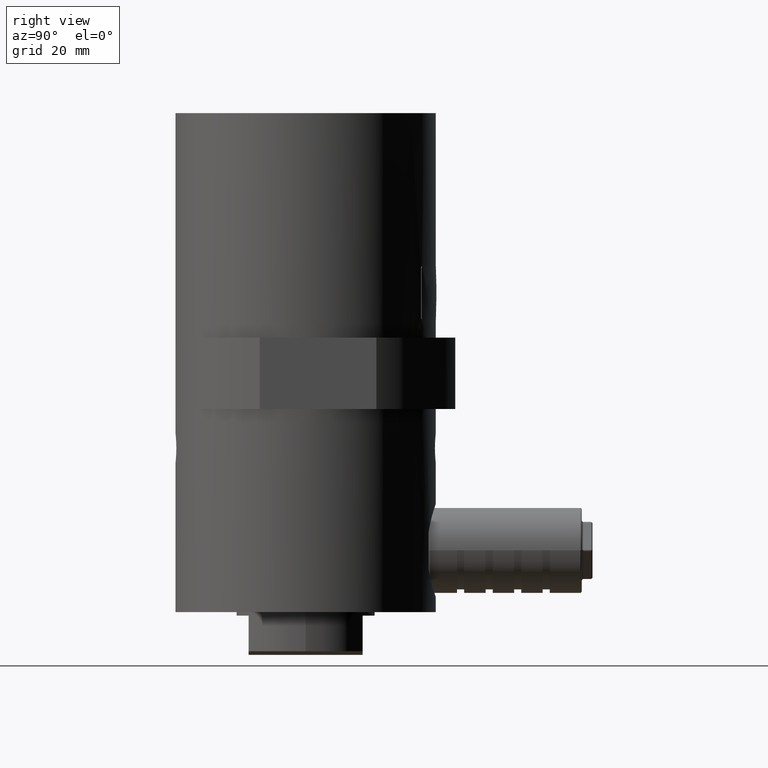
[diagram: clean part render]
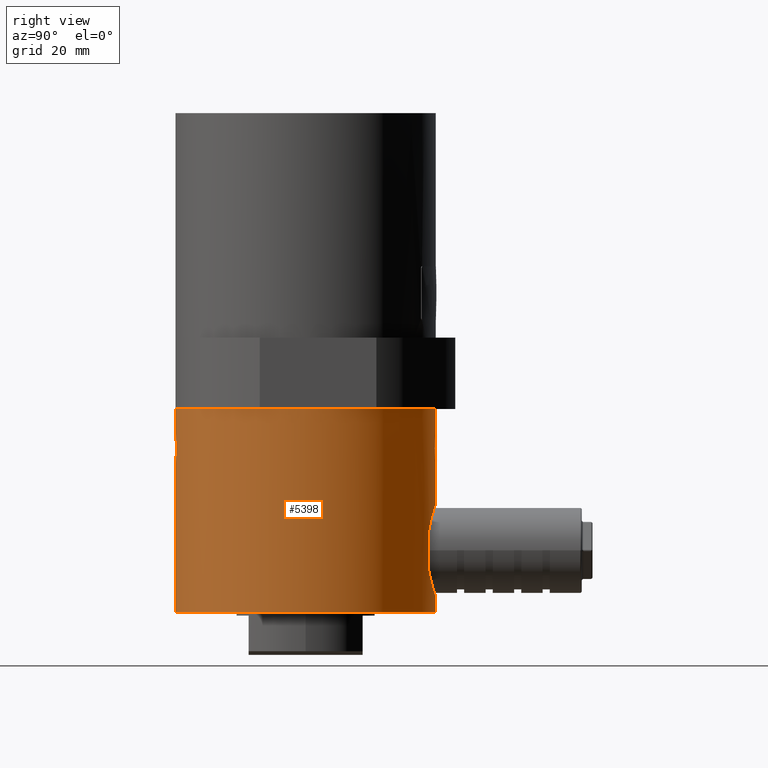
[diagram: same view with one face highlighted and labeled with its STEP entity id]
A machine part, right view. The second image highlights one B-rep face of the part: STEP entity #5398.
In plain terms, the highlighted cylindrical surface (partial cylindrical patch) has radius 36.5 mm, axis along (0, -0, 1).
Its self-contained STEP definition (entity closure, byte-faithful):
#20 = CARTESIAN_POINT ( 'NONE',  ( 9.778555430068150800, 35.16637172208777400, -131.2719685003688700 ) ) ;
#24 = CARTESIAN_POINT ( 'NONE',  ( 1.771616815519403900, -36.45777636000617900, -90.40426581798509200 ) ) ;
#41 = CARTESIAN_POINT ( 'NONE',  ( 11.94528777384622000, 34.49000000000000200, -127.8293371891501800 ) ) ;
#114 = VERTEX_POINT ( 'NONE', #2046 ) ;
#161 = CARTESIAN_POINT ( 'NONE',  ( 2.645151112116227700, -36.40449571297064300, -97.01182245972367500 ) ) ;
#179 = CARTESIAN_POINT ( 'NONE',  ( 0.2643157487566177300, -36.50000000000000000, -98.00000000000001400 ) ) ;
#183 = VERTEX_POINT ( 'NONE', #264 ) ;
#191 = CARTESIAN_POINT ( 'NONE',  ( 4.000000000000000000, 36.28015986734347100, -94.00000000000000000 ) ) ;
#217 = CARTESIAN_POINT ( 'NONE',  ( 1.775047907601103200, -36.45760690455501400, -97.59401922834754800 ) ) ;
#264 = CARTESIAN_POINT ( 'NONE',  ( 4.469960872424801800E-015, 36.50000000000000700, -90.00000000000000000 ) ) ;
#308 = CARTESIAN_POINT ( 'NONE',  ( 1.267367008762928100, 36.48347685902305000, -135.6538297932009700 ) ) ;
#337 = CARTESIAN_POINT ( 'NONE',  ( -6.659651541786251600E-030, 1.714448895351339800E-014, -140.0000000000000000 ) ) ;
#346 = CARTESIAN_POINT ( 'NONE',  ( 1.035464438332230900, 36.48620525582615000, -97.87243148480682500 ) ) ;
#354 = DIRECTION ( 'NONE',  ( 4.756893958418750000E-032, -1.224606353822383900E-016, 1.000000000000000000 ) ) ;
#444 = CARTESIAN_POINT ( 'NONE',  ( 9.127438694983826700, 35.34107086984025900, -113.4377464997834000 ) ) ;
#453 = CARTESIAN_POINT ( 'NONE',  ( 3.012049211853414600, -36.37597842538082200, -91.35508037010399100 ) ) ;
#469 = CARTESIAN_POINT ( 'NONE',  ( 0.6347074950859447100, 36.50000000000000000, -109.6999999999999900 ) ) ;
#475 = DIRECTION ( 'NONE',  ( 0.0000000000000000000, 1.000000000000000000, 0.0000000000000000000 ) ) ;
#485 = ORIENTED_EDGE ( 'NONE', *, *, #5120, .T. ) ;
#519 = CARTESIAN_POINT ( 'NONE',  ( 3.471332641464291800, -36.33484694282923000, -91.99546552348670000 ) ) ;
#538 = CARTESIAN_POINT ( 'NONE',  ( 3.594260535429708400, -36.32274068013733600, -92.22516122896956900 ) ) ;
#553 = DIRECTION ( 'NONE',  ( -4.756893958418750000E-032, 1.224606353822383900E-016, -1.000000000000000000 ) ) ;
#633 = CARTESIAN_POINT ( 'NONE',  ( 11.94528777384622000, 34.49000000000000200, -127.8293371891501800 ) ) ;
#696 = ORIENTED_EDGE ( 'NONE', *, *, #5666, .T. ) ;
#757 = CARTESIAN_POINT ( 'NONE',  ( 0.6342915227671740400, 36.50000000000001400, -135.7000000000000200 ) ) ;
#820 = EDGE_CURVE ( 'NONE', #183, #3149, #6056, .T. ) ;
#832 = CARTESIAN_POINT ( 'NONE',  ( 3.870720647310023300, 36.29421747909638900, -95.04258738552832100 ) ) ;
#863 = DIRECTION ( 'NONE',  ( -4.756893958418750000E-032, 1.224606353822383900E-016, -1.000000000000000000 ) ) ;
#883 = CARTESIAN_POINT ( 'NONE',  ( -3.948221985487564300E-030, 1.016423273672579900E-014, -83.00000000000000000 ) ) ;
#886 = LINE ( 'NONE', #3372, #6092 ) ;
#889 = CARTESIAN_POINT ( 'NONE',  ( 4.370137946967112400, 36.24252201808216300, -110.4403146722136900 ) ) ;
#892 = AXIS2_PLACEMENT_3D ( 'NONE', #1270, #1294, #3339 ) ;
#957 = CARTESIAN_POINT ( 'NONE',  ( 6.653916620651197700, 35.88946870403552200, -111.5274572706509700 ) ) ;
#971 = EDGE_CURVE ( 'NONE', #5291, #183, #3874, .T. ) ;
#1013 = EDGE_LOOP ( 'NONE', ( #2701, #1580, #1985, #2295, #2092, #4784, #1121, #5720, #2073, #696, #3067, #4777, #485, #4979, #4762 ) ) ;
#1062 = VECTOR ( 'NONE', #553, 1000.000000000000000 ) ;
#1121 = ORIENTED_EDGE ( 'NONE', *, *, #4513, .T. ) ;
#1162 = CARTESIAN_POINT ( 'NONE',  ( 3.472133380276375200, -36.33476961676002000, -96.00312249883188500 ) ) ;
#1255 = CARTESIAN_POINT ( 'NONE',  ( 3.872218025569685600, 36.29405665241856100, -92.96367664966167900 ) ) ;
#1270 = CARTESIAN_POINT ( 'NONE',  ( -3.948221985487564300E-030, 1.016423273672579900E-014, -83.00000000000000000 ) ) ;
#1294 = DIRECTION ( 'NONE',  ( -4.756893958418750000E-032, 1.224606353822383900E-016, -1.000000000000000000 ) ) ;
#1302 = CARTESIAN_POINT ( 'NONE',  ( 4.000000000000000000, 36.28015986734350700, -93.73543523187927900 ) ) ;
#1318 = CARTESIAN_POINT ( 'NONE',  ( 3.155087671428643800, 36.36472317645144900, -135.3153627309725100 ) ) ;
#1353 = CARTESIAN_POINT ( 'NONE',  ( 4.000000000000000000, 36.28015986734347100, -94.00000000000000000 ) ) ;
#1364 = VECTOR ( 'NONE', #5170, 1000.000000000000000 ) ;
#1372 = CARTESIAN_POINT ( 'NONE',  ( 4.469960872424801800E-015, 36.50000000000000700, -90.00000000000000000 ) ) ;
#1374 = CARTESIAN_POINT ( 'NONE',  ( 0.2642569970219800200, 36.50000000000002100, -98.00000000000001400 ) ) ;
#1387 = CARTESIAN_POINT ( 'NONE',  ( 7.707908462411435100, 35.68085585538752700, -133.1872786232761400 ) ) ;
#1428 = CARTESIAN_POINT ( 'NONE',  ( 9.777757007282566800, 35.16659397958473900, -114.1271196174098600 ) ) ;
#1561 = FACE_OUTER_BOUND ( 'NONE', #1013, .T. ) ;
#1580 = ORIENTED_EDGE ( 'NONE', *, *, #2494, .T. ) ;
#1676 = CARTESIAN_POINT ( 'NONE',  ( 3.013539097279224000, -36.37585345570323600, -96.64319523380233100 ) ) ;
#1678 = EDGE_CURVE ( 'NONE', #4942, #5465, #4636, .T. ) ;
#1699 = CARTESIAN_POINT ( 'NONE',  ( 4.000000000000001800, -36.28015986734346400, -94.26425643815770200 ) ) ;
#1709 = CARTESIAN_POINT ( 'NONE',  ( 4.469960816887831300E-015, 36.50000000000001400, -140.0000000000000000 ) ) ;
#1778 = CARTESIAN_POINT ( 'NONE',  ( 2.004069476160280000, 36.44559949802812300, -90.52826883490581600 ) ) ;
#1790 = CARTESIAN_POINT ( 'NONE',  ( -6.659651541786251600E-030, 1.714448895351339800E-014, -140.0000000000000000 ) ) ;
#1857 = VERTEX_POINT ( 'NONE', #2308 ) ;
#1907 = CARTESIAN_POINT ( 'NONE',  ( 11.44183048544275400, 34.66436770634443600, -116.3982029061781400 ) ) ;
#1932 = CARTESIAN_POINT ( 'NONE',  ( 5.818119153085315400, 36.03447675783002800, -111.0703080205299800 ) ) ;
#1946 = CARTESIAN_POINT ( 'NONE',  ( 0.2611788878705434400, 36.50000000000000700, -89.99999999999997200 ) ) ;
#1977 = CARTESIAN_POINT ( 'NONE',  ( 2.543323374543458900, 36.41684507756042400, -109.9350327000208300 ) ) ;
#1985 = ORIENTED_EDGE ( 'NONE', *, *, #5681, .T. ) ;
#1987 = CARTESIAN_POINT ( 'NONE',  ( 0.5209754329271869500, -36.49719594881125300, -90.02534117997592500 ) ) ;
#2046 = CARTESIAN_POINT ( 'NONE',  ( 11.94528777384622000, 34.49000000000000200, -117.5706628108498000 ) ) ;
#2070 = CARTESIAN_POINT ( 'NONE',  ( 11.44210201840087000, 34.66427366345303100, -129.0011647432461100 ) ) ;
#2073 = ORIENTED_EDGE ( 'NONE', *, *, #820, .T. ) ;
#2092 = ORIENTED_EDGE ( 'NONE', *, *, #4303, .T. ) ;
#2195 = CARTESIAN_POINT ( 'NONE',  ( 3.795532454401846900, -36.30226029463583600, -95.28941602425527400 ) ) ;
#2207 = VERTEX_POINT ( 'NONE', #633 ) ;
#2288 = CARTESIAN_POINT ( 'NONE',  ( 4.959541145783456200, 36.16611314729268400, -134.7333853982269700 ) ) ;
#2295 = ORIENTED_EDGE ( 'NONE', *, *, #2794, .F. ) ;
#2307 = CARTESIAN_POINT ( 'NONE',  ( 6.103393645098708300, 35.99074012259909900, -134.1955642981086800 ) ) ;
#2308 = CARTESIAN_POINT ( 'NONE',  ( 1.778981929055194700E-015, -36.50000000000000000, -98.00000000000000000 ) ) ;
#2317 = CARTESIAN_POINT ( 'NONE',  ( 3.011846425882153300, 36.37599512502883000, -91.35485361387102900 ) ) ;
#2319 = CARTESIAN_POINT ( 'NONE',  ( 3.469774696204721100, 36.33499998409977400, -96.00741614653364300 ) ) ;
#2329 = VERTEX_POINT ( 'NONE', #3404 ) ;
#2344 = CARTESIAN_POINT ( 'NONE',  ( 0.5242668822873894900, 36.49713009004219100, -97.97404786630845300 ) ) ;
#2387 = DIRECTION ( 'NONE',  ( -4.756893958418750000E-032, 1.224606353822383900E-016, -1.000000000000000000 ) ) ;
#2391 = CARTESIAN_POINT ( 'NONE',  ( 4.469960816887833700E-015, 36.50000000000001400, -140.0000000000000000 ) ) ;
#2418 = CARTESIAN_POINT ( 'NONE',  ( 4.000000000000000900, 36.28015986734350700, -94.26431602181199300 ) ) ;
#2432 = EDGE_CURVE ( 'NONE', #4324, #3618, #3058, .T. ) ;
#2451 = CARTESIAN_POINT ( 'NONE',  ( -5.303936763636907300E-030, -36.49999999999998600, -140.0000000000000000 ) ) ;
#2470 = CARTESIAN_POINT ( 'NONE',  ( 6.101933842327811800, 35.98742799418123200, -111.2166764036903100 ) ) ;
#2474 = AXIS2_PLACEMENT_3D ( 'NONE', #1790, #6374, #2822 ) ;
#2482 = CARTESIAN_POINT ( 'NONE',  ( 4.000000000000000000, -36.28015986734363500, -94.00000000000000000 ) ) ;
#2494 = EDGE_CURVE ( 'NONE', #4942, #2329, #6501, .T. ) ;
#2545 = CARTESIAN_POINT ( 'NONE',  ( 2.643043313641149500, -36.40465037465151000, -90.98630420489180900 ) ) ;
#2642 = CARTESIAN_POINT ( 'NONE',  ( 1.042587794218635500, -36.48602251411111300, -97.87072055622357400 ) ) ;
#2666 = CARTESIAN_POINT ( 'NONE',  ( 1.294240532025534800, -36.47784036544103300, -97.79377262540511100 ) ) ;
#2687 = B_SPLINE_CURVE_WITH_KNOTS ( 'NONE', 3,
 ( #4864, #1374, #2344, #346, #3883, #4908, #2862, #3425, #5344, #6431, #6362, #2319, #2837, #2884, #832, #6386, #2418, #1353 ),
 .UNSPECIFIED., .F., .F.,
 ( 4, 2, 2, 2, 2, 2, 2, 2, 4 ),
 ( 0.01877429077956822200, 0.01955593797268578800, 0.02033758516580335900, 0.02111923235892092600, 0.02190087955203849300, 0.02268252674515606000, 0.02346417393827363000, 0.02424582113139119700, 0.02502746832450876400 ),
 .UNSPECIFIED. ) ;
#2701 = ORIENTED_EDGE ( 'NONE', *, *, #1678, .F. ) ;
#2731 = CARTESIAN_POINT ( 'NONE',  ( 3.974047726231085200, -36.28304778132867600, -94.52426761566422900 ) ) ;
#2770 = AXIS2_PLACEMENT_3D ( 'NONE', #337, #2387, #475 ) ;
#2794 = EDGE_CURVE ( 'NONE', #114, #2207, #3766, .T. ) ;
#2801 = CARTESIAN_POINT ( 'NONE',  ( 6.660485778851450400, 35.89113061227763500, -133.8818064272663500 ) ) ;
#2822 = DIRECTION ( 'NONE',  ( 0.0000000000000000000, -1.000000000000000000, 0.0000000000000000000 ) ) ;
#2837 = CARTESIAN_POINT ( 'NONE',  ( 3.594021598484242300, 36.32276265865917300, -95.77504287407718700 ) ) ;
#2850 = CARTESIAN_POINT ( 'NONE',  ( 2.215123778384965100, 36.43409532787767100, -135.5138678004716200 ) ) ;
#2862 = CARTESIAN_POINT ( 'NONE',  ( 2.003128414507792800, 36.44564232964036400, -97.47213004168210700 ) ) ;
#2884 = CARTESIAN_POINT ( 'NONE',  ( 3.793773292373779700, 36.30244292900586300, -95.29423825521226400 ) ) ;
#2956 = LINE ( 'NONE', #4700, #1364 ) ;
#2977 = DIRECTION ( 'NONE',  ( 4.756893958418750000E-032, -1.224606353822383900E-016, 1.000000000000000000 ) ) ;
#2987 = CARTESIAN_POINT ( 'NONE',  ( 4.958548088137625600, 36.16626748253111100, -110.6661400654229500 ) ) ;
#3020 = CARTESIAN_POINT ( 'NONE',  ( 3.795206345034269000, -36.30229480503486900, -92.70958523787430700 ) ) ;
#3058 = LINE ( 'NONE', #3500, #5951 ) ;
#3067 = ORIENTED_EDGE ( 'NONE', *, *, #5818, .T. ) ;
#3081 = CARTESIAN_POINT ( 'NONE',  ( 8.202656483409699100, 35.56960929818563200, -132.8048705507489700 ) ) ;
#3149 = VERTEX_POINT ( 'NONE', #6189 ) ;
#3171 = CARTESIAN_POINT ( 'NONE',  ( 2.007422280640792400, -36.44541272544157800, -97.46977127975769400 ) ) ;
#3189 = CARTESIAN_POINT ( 'NONE',  ( 1.778981929055194700E-015, -36.50000000000000000, -98.00000000000000000 ) ) ;
#3267 = B_SPLINE_CURVE_WITH_KNOTS ( 'NONE', 3,
 ( #4019, #3491, #1987, #5552, #3583, #24, #5027, #6017, #2545, #453, #3559, #519, #538, #3020, #4988, #4501, #4000, #2482 ),
 .UNSPECIFIED., .F., .F.,
 ( 4, 2, 2, 2, 2, 2, 2, 2, 4 ),
 ( 0.01251521701683424300, 0.01329760225550367400, 0.01407998749417310600, 0.01486237273284253900, 0.01564475797151197000, 0.01642714321018140200, 0.01720952844885083300, 0.01799191368752026500, 0.01877429892618969600 ),
 .UNSPECIFIED. ) ;
#3298 = CARTESIAN_POINT ( 'NONE',  ( 4.000000000000000000, -36.28015986734363500, -94.00000000000000000 ) ) ;
#3308 = CARTESIAN_POINT ( 'NONE',  ( 3.471233374246333700, 36.33485664339681900, -91.99528449295279100 ) ) ;
#3324 = CARTESIAN_POINT ( 'NONE',  ( 3.462239782100196500, 36.33669789032781200, -135.2344735085443100 ) ) ;
#3339 = DIRECTION ( 'NONE',  ( 0.0000000000000000000, 1.000000000000000000, 0.0000000000000000000 ) ) ;
#3347 = EDGE_CURVE ( 'NONE', #5465, #1857, #886, .T. ) ;
#3372 = CARTESIAN_POINT ( 'NONE',  ( -6.659651541786251600E-030, -36.49999999999998600, -140.0000000000000000 ) ) ;
#3404 = CARTESIAN_POINT ( 'NONE',  ( 4.470009316652248200E-015, 36.50000000000001400, -135.7000000000000200 ) ) ;
#3425 = CARTESIAN_POINT ( 'NONE',  ( 2.437607308408545700, 36.41916307213929100, -97.18218181148610300 ) ) ;
#3444 = CARTESIAN_POINT ( 'NONE',  ( 1.037549210320788000, 36.48616510049991700, -90.12794042122830300 ) ) ;
#3481 = B_SPLINE_CURVE_WITH_KNOTS ( 'NONE', 3,
 ( #6158, #1699, #2731, #5680, #2195, #6182, #1162, #4692, #1676, #161, #4226, #3171, #217, #2666, #2642, #3691, #179, #3189 ),
 .UNSPECIFIED., .F., .F.,
 ( 4, 2, 2, 2, 2, 2, 2, 2, 4 ),
 ( 0.01877429892618969600, 0.01955594615471521400, 0.02033759338324073200, 0.02111924061176625300, 0.02190088784029177100, 0.02268253506881728900, 0.02346418229734281000, 0.02424582952586832800, 0.02502747675439384600 ),
 .UNSPECIFIED. ) ;
#3491 = CARTESIAN_POINT ( 'NONE',  ( 0.2612195706958113700, -36.49999999999999300, -90.00000000000001400 ) ) ;
#3500 = CARTESIAN_POINT ( 'NONE',  ( 4.469960816887831300E-015, 36.50000000000001400, -140.0000000000000000 ) ) ;
#3504 = CARTESIAN_POINT ( 'NONE',  ( 10.78504792150907000, 34.88028911614138400, -115.3336098600905300 ) ) ;
#3559 = CARTESIAN_POINT ( 'NONE',  ( 3.180979894551115200, -36.36141663325266600, -91.56080429532858000 ) ) ;
#3583 = CARTESIAN_POINT ( 'NONE',  ( 1.290031562308704900, -36.47799202019628200, -90.20477286358395500 ) ) ;
#3586 = EDGE_CURVE ( 'NONE', #5669, #1857, #3481, .T. ) ;
#3618 = VERTEX_POINT ( 'NONE', #3742 ) ;
#3677 = CARTESIAN_POINT ( 'NONE',  ( 36.50000000000000000, 1.710312664063304800E-014, -83.00000000000000000 ) ) ;
#3691 = CARTESIAN_POINT ( 'NONE',  ( 0.5256840667646766100, -36.49712981140881900, -97.97405626469672800 ) ) ;
#3742 = CARTESIAN_POINT ( 'NONE',  ( 4.336566949639173400E-016, 36.50000000000000700, -98.00000000000000000 ) ) ;
#3766 = LINE ( 'NONE', #5613, #1062 ) ;
#3811 = CARTESIAN_POINT ( 'NONE',  ( 3.180772823463368300, 36.36143496453620800, -91.56052676829729400 ) ) ;
#3874 = B_SPLINE_CURVE_WITH_KNOTS ( 'NONE', 3,
 ( #5800, #1302, #4280, #1255, #6296, #4839, #3308, #3811, #2317, #4301, #4814, #1778, #5314, #4458, #3444, #5948, #1946, #1372 ),
 .UNSPECIFIED., .F., .F.,
 ( 4, 2, 2, 2, 2, 2, 2, 2, 4 ),
 ( 0.0000000000000000000, 0.0007823827968569269900, 0.001564765593713853600, 0.002347148390570780400, 0.003129531187427707100, 0.003911913984284634200, 0.004694296781141560900, 0.005476679577998488400, 0.006259062374855414200 ),
 .UNSPECIFIED. ) ;
#3883 = CARTESIAN_POINT ( 'NONE',  ( 1.289418006080638800, 36.47802215886162000, -97.79553189071973000 ) ) ;
#3929 = CARTESIAN_POINT ( 'NONE',  ( 9.565868164819839600, 35.22492858205740200, -113.8912745935493100 ) ) ;
#4000 = CARTESIAN_POINT ( 'NONE',  ( 4.000000000000000000, -36.28015986734347100, -93.73549405807017400 ) ) ;
#4019 = CARTESIAN_POINT ( 'NONE',  ( 3.809409311312266000E-023, -36.49999999999999300, -90.00000000000000000 ) ) ;
#4092 = VECTOR ( 'NONE', #5691, 1000.000000000000000 ) ;
#4226 = CARTESIAN_POINT ( 'NONE',  ( 2.444114377247703600, -36.41873361130948400, -97.17731991741079900 ) ) ;
#4280 = CARTESIAN_POINT ( 'NONE',  ( 3.974010963488997700, 36.28305193321785500, -93.47533307129906200 ) ) ;
#4301 = CARTESIAN_POINT ( 'NONE',  ( 2.642876097964837800, 36.40466242337682700, -90.98616121400689800 ) ) ;
#4303 = EDGE_CURVE ( 'NONE', #114, #4324, #6076, .T. ) ;
#4324 = VERTEX_POINT ( 'NONE', #4934 ) ;
#4458 = CARTESIAN_POINT ( 'NONE',  ( 1.289968068757932500, 36.47799389222323200, -90.20475571693677400 ) ) ;
#4461 = B_SPLINE_CURVE_WITH_KNOTS ( 'NONE', 3,
 ( #4897, #757, #308, #2850, #4802, #1318, #3324, #4827, #2288, #2307, #2801, #1387, #3081, #6053, #5044, #5068, #20, #5089, #2070, #41 ),
 .UNSPECIFIED., .F., .F.,
 ( 4, 2, 2, 2, 2, 2, 2, 2, 2, 4 ),
 ( 0.01522853815515428500, 0.01713085787146758100, 0.01808201772962422800, 0.01903317758778087800, 0.02093549730409417400, 0.02283781702040747400, 0.02474013673672077100, 0.02569129659487744800, 0.02664245645303411900, 0.03044709588566101000 ),
 .UNSPECIFIED. ) ;
#4490 = CARTESIAN_POINT ( 'NONE',  ( 4.469912317053164800E-015, 36.50000000000000700, -109.7000000000000000 ) ) ;
#4492 = AXIS2_PLACEMENT_3D ( 'NONE', #883, #863, #4930 ) ;
#4501 = CARTESIAN_POINT ( 'NONE',  ( 3.974022321708968100, -36.28305067165554500, -93.47543077548203900 ) ) ;
#4513 = EDGE_CURVE ( 'NONE', #3618, #5291, #2687, .T. ) ;
#4514 = CARTESIAN_POINT ( 'NONE',  ( 1.272115201094098800, 36.48337733962798500, -109.7464442382725300 ) ) ;
#4545 = VECTOR ( 'NONE', #354, 1000.000000000000000 ) ;
#4596 = CARTESIAN_POINT ( 'NONE',  ( 3.809409311312266000E-023, -36.49999999999999300, -90.00000000000000000 ) ) ;
#4636 = CIRCLE ( 'NONE', #2770, 36.50000000000000000 ) ;
#4692 = CARTESIAN_POINT ( 'NONE',  ( 3.182187088930116000, -36.36131018877762200, -96.43760031317738400 ) ) ;
#4700 = CARTESIAN_POINT ( 'NONE',  ( -6.659651541786251600E-030, -36.49999999999998600, -140.0000000000000000 ) ) ;
#4762 = ORIENTED_EDGE ( 'NONE', *, *, #3347, .F. ) ;
#4777 = ORIENTED_EDGE ( 'NONE', *, *, #6078, .F. ) ;
#4784 = ORIENTED_EDGE ( 'NONE', *, *, #2432, .T. ) ;
#4802 = CARTESIAN_POINT ( 'NONE',  ( 2.531943565423473900, 36.41341691871084400, -135.4550467200211600 ) ) ;
#4814 = CARTESIAN_POINT ( 'NONE',  ( 2.441512768821406400, 36.41891037133904500, -90.82065617656009200 ) ) ;
#4827 = CARTESIAN_POINT ( 'NONE',  ( 4.370855042670099200, 36.24246815164230600, -134.9595329428405500 ) ) ;
#4839 = CARTESIAN_POINT ( 'NONE',  ( 3.594188214850033300, 36.32274787643554200, -92.22501278799039400 ) ) ;
#4864 = CARTESIAN_POINT ( 'NONE',  ( 4.336566949639173400E-016, 36.50000000000000700, -98.00000000000000000 ) ) ;
#4878 = CIRCLE ( 'NONE', #4492, 36.50000000000000000 ) ;
#4897 = CARTESIAN_POINT ( 'NONE',  ( 4.470009316652248200E-015, 36.50000000000001400, -135.7000000000000200 ) ) ;
#4908 = CARTESIAN_POINT ( 'NONE',  ( 1.773550532108288500, 36.45769079257301100, -97.59488242338099400 ) ) ;
#4930 = DIRECTION ( 'NONE',  ( 0.0000000000000000000, 1.000000000000000000, 0.0000000000000000000 ) ) ;
#4934 = CARTESIAN_POINT ( 'NONE',  ( 4.469912317053164800E-015, 36.50000000000000700, -109.7000000000000000 ) ) ;
#4942 = VERTEX_POINT ( 'NONE', #2391 ) ;
#4958 = CARTESIAN_POINT ( 'NONE',  ( 8.201245995086319200, 35.56993508468933400, -112.5939859148032300 ) ) ;
#4979 = ORIENTED_EDGE ( 'NONE', *, *, #3586, .T. ) ;
#4988 = CARTESIAN_POINT ( 'NONE',  ( 3.872254080626412100, -36.29405278816953000, -92.96381728453683000 ) ) ;
#5027 = CARTESIAN_POINT ( 'NONE',  ( 2.004353636805962200, -36.44558354524590300, -90.52843690686538000 ) ) ;
#5044 = CARTESIAN_POINT ( 'NONE',  ( 9.128669631521598000, 35.34075167884813600, -131.9610322289631200 ) ) ;
#5068 = CARTESIAN_POINT ( 'NONE',  ( 9.566716613280995300, 35.22469690016715300, -131.5077954352115300 ) ) ;
#5089 = CARTESIAN_POINT ( 'NONE',  ( 10.78563550995236900, 34.88010333938198900, -130.0655081949698800 ) ) ;
#5120 = EDGE_CURVE ( 'NONE', #5179, #5669, #3267, .T. ) ;
#5170 = DIRECTION ( 'NONE',  ( 4.756893958418750000E-032, -1.224606353822383900E-016, 1.000000000000000000 ) ) ;
#5179 = VERTEX_POINT ( 'NONE', #4596 ) ;
#5196 = VERTEX_POINT ( 'NONE', #6077 ) ;
#5291 = VERTEX_POINT ( 'NONE', #191 ) ;
#5314 = CARTESIAN_POINT ( 'NONE',  ( 1.771440457049204800, 36.45778455593014700, -90.40418361235330700 ) ) ;
#5344 = CARTESIAN_POINT ( 'NONE',  ( 2.643202970474335600, 36.40463781723374100, -97.01353235361583000 ) ) ;
#5356 = CARTESIAN_POINT ( 'NONE',  ( 11.94528777384622000, 34.49000000000000200, -117.5706628108498000 ) ) ;
#5398 = ADVANCED_FACE ( 'NONE', ( #1561 ), #5433, .T. ) ;
#5410 = DIRECTION ( 'NONE',  ( 4.756893958418750000E-032, -1.224606353822383900E-016, 1.000000000000000000 ) ) ;
#5433 = CYLINDRICAL_SURFACE ( 'NONE', #2474, 36.50000000000000000 ) ;
#5465 = VERTEX_POINT ( 'NONE', #2451 ) ;
#5484 = CARTESIAN_POINT ( 'NONE',  ( 6.922499793687809900, 35.83852818027072100, -111.6919394527795600 ) ) ;
#5501 = CARTESIAN_POINT ( 'NONE',  ( 7.706820635086005600, 35.68107814774207000, -112.2119822026214300 ) ) ;
#5552 = CARTESIAN_POINT ( 'NONE',  ( 1.037491124796944900, -36.48616641541838800, -90.12792816398291500 ) ) ;
#5584 = CIRCLE ( 'NONE', #892, 36.50000000000000000 ) ;
#5613 = CARTESIAN_POINT ( 'NONE',  ( 11.94528777384622000, 34.49000000000000200, -140.0000000000000000 ) ) ;
#5666 = EDGE_CURVE ( 'NONE', #3149, #6063, #5584, .T. ) ;
#5669 = VERTEX_POINT ( 'NONE', #3298 ) ;
#5680 = CARTESIAN_POINT ( 'NONE',  ( 3.872431591399503800, -36.29403374113262300, -95.03546387340543300 ) ) ;
#5681 = EDGE_CURVE ( 'NONE', #2329, #2207, #4461, .T. ) ;
#5691 = DIRECTION ( 'NONE',  ( 4.756893958418750000E-032, -1.224606353822383900E-016, 1.000000000000000000 ) ) ;
#5720 = ORIENTED_EDGE ( 'NONE', *, *, #971, .T. ) ;
#5800 = CARTESIAN_POINT ( 'NONE',  ( 4.000000000000000000, 36.28015986734347100, -94.00000000000000000 ) ) ;
#5809 = CARTESIAN_POINT ( 'NONE',  ( 4.469960816887831300E-015, 36.50000000000001400, -140.0000000000000000 ) ) ;
#5818 = EDGE_CURVE ( 'NONE', #6063, #5196, #4878, .T. ) ;
#5948 = CARTESIAN_POINT ( 'NONE',  ( 0.5209384086516539700, 36.49719681399064100, -90.02533310580800200 ) ) ;
#5951 = VECTOR ( 'NONE', #2977, 1000.000000000000000 ) ;
#5960 = CARTESIAN_POINT ( 'NONE',  ( 3.162521801583992000, 36.36780119502961400, -110.0747694727435500 ) ) ;
#6017 = CARTESIAN_POINT ( 'NONE',  ( 2.441688423342830200, -36.41889826859386400, -90.82079546831205600 ) ) ;
#6053 = CARTESIAN_POINT ( 'NONE',  ( 8.902476675540464500, 35.39849684370874900, -132.1786024602528500 ) ) ;
#6056 = LINE ( 'NONE', #1709, #4092 ) ;
#6063 = VERTEX_POINT ( 'NONE', #3677 ) ;
#6076 = B_SPLINE_CURVE_WITH_KNOTS ( 'NONE', 3,
 ( #5356, #1907, #3504, #1428, #3929, #444, #6487, #4958, #5501, #5484, #957, #2470, #1932, #2987, #889, #5960, #1977, #4514, #469, #4490 ),
 .UNSPECIFIED., .F., .F.,
 ( 4, 2, 2, 2, 2, 2, 2, 2, 2, 4 ),
 ( 0.0000000000000000000, 0.003807134538788611200, 0.004758918173485753500, 0.005710701808182895900, 0.007614269077577179800, 0.008566052712274323900, 0.009517836346971467200, 0.01142140361636573800, 0.01332497088576001100, 0.01522853815515428200 ),
 .UNSPECIFIED. ) ;
#6077 = CARTESIAN_POINT ( 'NONE',  ( -5.303936763636907300E-030, -36.49999999999999300, -83.00000000000000000 ) ) ;
#6078 = EDGE_CURVE ( 'NONE', #5179, #5196, #2956, .T. ) ;
#6092 = VECTOR ( 'NONE', #5410, 1000.000000000000000 ) ;
#6158 = CARTESIAN_POINT ( 'NONE',  ( 4.000000000000000000, -36.28015986734363500, -94.00000000000000000 ) ) ;
#6182 = CARTESIAN_POINT ( 'NONE',  ( 3.594884642357452100, -36.32267850145489500, -95.77354579985026800 ) ) ;
#6189 = CARTESIAN_POINT ( 'NONE',  ( 4.469960816887832900E-015, 36.50000000000000700, -83.00000000000000000 ) ) ;
#6296 = CARTESIAN_POINT ( 'NONE',  ( 3.795162680133414000, 36.30229940995739200, -92.70945408532392700 ) ) ;
#6362 = CARTESIAN_POINT ( 'NONE',  ( 3.177326234346431500, 36.36174030883955800, -96.44410597730960400 ) ) ;
#6374 = DIRECTION ( 'NONE',  ( 4.756893958418750000E-032, -1.224606353822383900E-016, 1.000000000000000000 ) ) ;
#6386 = CARTESIAN_POINT ( 'NONE',  ( 3.974056228363682200, 36.28304807817642100, -94.52568420156852400 ) ) ;
#6431 = CARTESIAN_POINT ( 'NONE',  ( 3.011829899472291000, 36.37599561804094600, -96.64514268916792600 ) ) ;
#6487 = CARTESIAN_POINT ( 'NONE',  ( 8.901131621598816300, 35.39883522526139400, -113.2201347585790100 ) ) ;
#6501 = LINE ( 'NONE', #5809, #4545 ) ;